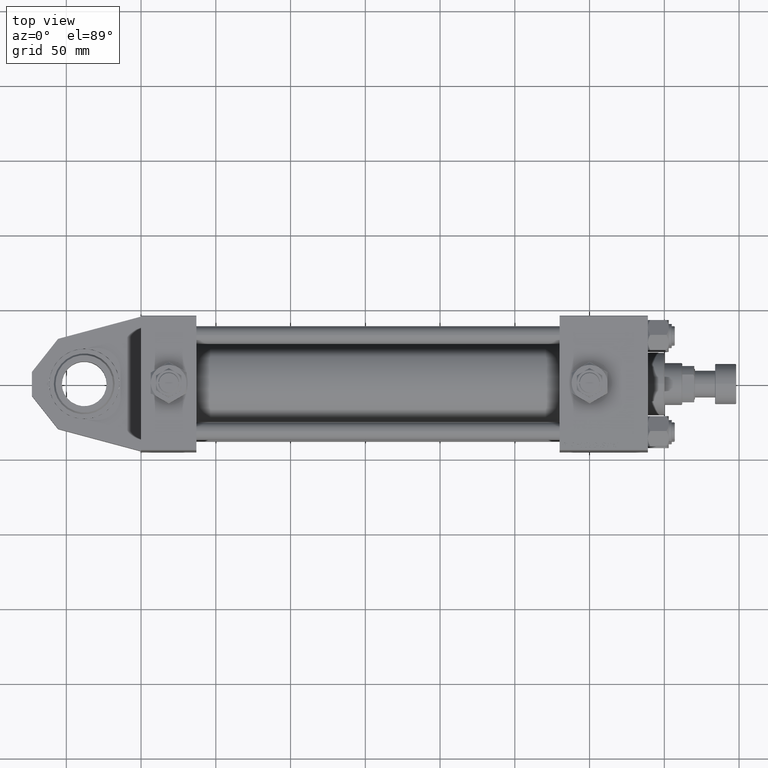
[diagram: clean part render]
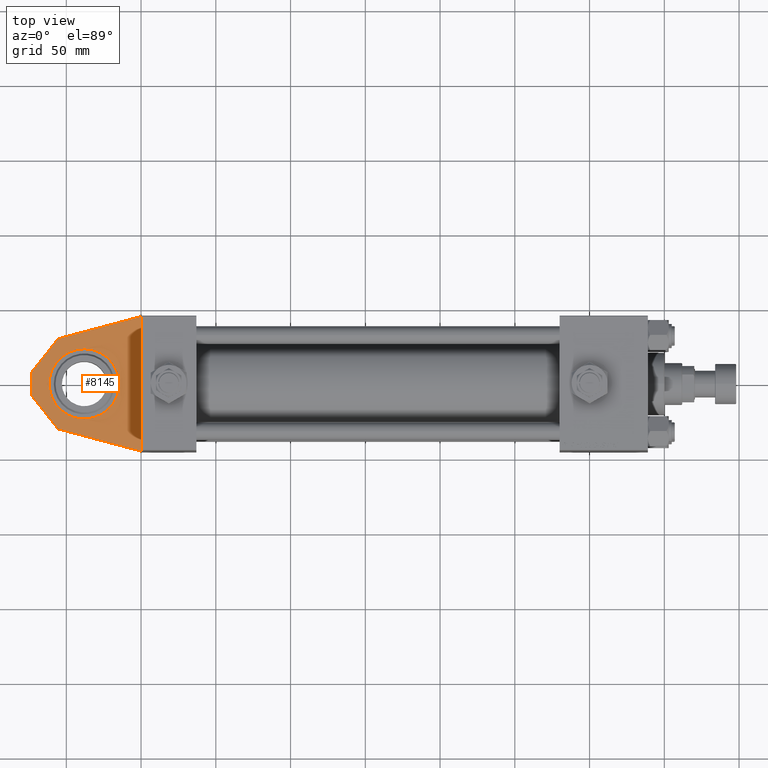
[diagram: same view with one face highlighted and labeled with its STEP entity id]
A machine part, top view. The second image highlights one B-rep face of the part: STEP entity #8145.
In plain terms, the highlighted planar face has unit normal (0, 0, 1).
Its self-contained STEP definition (entity closure, byte-faithful):
#157 = VECTOR ( 'NONE', #27143, 1000.000000000000000 ) ;
#629 = DIRECTION ( 'NONE',  ( 0.000000000000000000, 0.000000000000000000, -1.000000000000000000 ) ) ;
#923 = CARTESIAN_POINT ( 'NONE',  ( -38.00000000000000000, 9.000000000000000000, 0.000000000000000000 ) ) ;
#1283 = LINE ( 'NONE', #34290, #4159 ) ;
#2702 = VECTOR ( 'NONE', #29369, 1000.000000000000114 ) ;
#2853 = CARTESIAN_POINT ( 'NONE',  ( -73.00000000000001421, 9.000000000000000000, -7.999999999999994671 ) ) ;
#3444 = VERTEX_POINT ( 'NONE', #25847 ) ;
#4139 = EDGE_LOOP ( 'NONE', ( #50196, #6636 ) ) ;
#4159 = VECTOR ( 'NONE', #21776, 1000.000000000000227 ) ;
#6438 = EDGE_CURVE ( 'NONE', #42836, #39048, #32847, .T. ) ;
#6636 = ORIENTED_EDGE ( 'NONE', *, *, #19770, .F. ) ;
#8145 = ADVANCED_FACE ( 'NONE', ( #17275, #33772 ), #33516, .T. ) ;
#10109 = CARTESIAN_POINT ( 'NONE',  ( -73.00000000000001421, 9.000000000000000000, -7.999999999999994671 ) ) ;
#10781 = DIRECTION ( 'NONE',  ( 0.000000000000000000, 0.000000000000000000, 1.000000000000000000 ) ) ;
#11910 = VECTOR ( 'NONE', #629, 1000.000000000000000 ) ;
#12604 = DIRECTION ( 'NONE',  ( -0.6202965109737120786, -0.000000000000000000, 0.7843674129346778212 ) ) ;
#12778 = ORIENTED_EDGE ( 'NONE', *, *, #16828, .T. ) ;
#12958 = CARTESIAN_POINT ( 'NONE',  ( -55.50000000000000000, 9.000000000000000000, 30.12881982007244019 ) ) ;
#13133 = CARTESIAN_POINT ( 'NONE',  ( -73.00000000000001421, 9.000000000000000000, 8.000000000000005329 ) ) ;
#13177 = AXIS2_PLACEMENT_3D ( 'NONE', #923, #45938, #21419 ) ;
#13209 = AXIS2_PLACEMENT_3D ( 'NONE', #47275, #39001, #10781 ) ;
#13216 = LINE ( 'NONE', #12958, #26741 ) ;
#13287 = CARTESIAN_POINT ( 'NONE',  ( 0.000000000000000000, 9.000000000000000000, 0.000000000000000000 ) ) ;
#15175 = EDGE_CURVE ( 'NONE', #33938, #28005, #16606, .T. ) ;
#16606 = CIRCLE ( 'NONE', #13177, 23.50000000000000355 ) ;
#16828 = EDGE_CURVE ( 'NONE', #3444, #27654, #13216, .T. ) ;
#16847 = CARTESIAN_POINT ( 'NONE',  ( -73.00000000000001421, 9.000000000000000000, -7.999999999999994671 ) ) ;
#17275 = FACE_BOUND ( 'NONE', #4139, .T. ) ;
#19770 = EDGE_CURVE ( 'NONE', #28005, #33938, #22549, .T. ) ;
#20888 = CARTESIAN_POINT ( 'NONE',  ( 0.000000000000000000, 9.000000000000000000, 45.00000000000000000 ) ) ;
#21419 = DIRECTION ( 'NONE',  ( 0.000000000000000000, 0.000000000000000000, 1.000000000000000000 ) ) ;
#21563 = ORIENTED_EDGE ( 'NONE', *, *, #38343, .T. ) ;
#21776 = DIRECTION ( 'NONE',  ( -0.9659258262890670910, -0.000000000000000000, 0.2588190451025247918 ) ) ;
#22384 = AXIS2_PLACEMENT_3D ( 'NONE', #13287, #29520, #35610 ) ;
#22549 = CIRCLE ( 'NONE', #13209, 23.50000000000000355 ) ;
#25427 = VERTEX_POINT ( 'NONE', #30717 ) ;
#25847 = CARTESIAN_POINT ( 'NONE',  ( -55.50000000000000000, 9.000000000000000000, 30.12881982007244019 ) ) ;
#26741 = VECTOR ( 'NONE', #41446, 1000.000000000000227 ) ;
#27143 = DIRECTION ( 'NONE',  ( 0.000000000000000000, 0.000000000000000000, 1.000000000000000000 ) ) ;
#27266 = ORIENTED_EDGE ( 'NONE', *, *, #6438, .T. ) ;
#27654 = VERTEX_POINT ( 'NONE', #20888 ) ;
#27680 = CARTESIAN_POINT ( 'NONE',  ( 0.000000000000000000, 9.000000000000000000, -45.00000000000000000 ) ) ;
#28005 = VERTEX_POINT ( 'NONE', #50128 ) ;
#29369 = DIRECTION ( 'NONE',  ( 0.6202965109737124116, 0.000000000000000000, 0.7843674129346777102 ) ) ;
#29520 = DIRECTION ( 'NONE',  ( -0.000000000000000000, 1.000000000000000000, 0.000000000000000000 ) ) ;
#30717 = CARTESIAN_POINT ( 'NONE',  ( -73.00000000000001421, 9.000000000000000000, 8.000000000000005329 ) ) ;
#31580 = EDGE_CURVE ( 'NONE', #38889, #42836, #1283, .T. ) ;
#32847 = LINE ( 'NONE', #16847, #47034 ) ;
#32886 = EDGE_LOOP ( 'NONE', ( #21563, #12778, #35520, #37762, #27266, #45554 ) ) ;
#33516 = PLANE ( 'NONE',  #22384 ) ;
#33772 = FACE_OUTER_BOUND ( 'NONE', #32886, .T. ) ;
#33938 = VERTEX_POINT ( 'NONE', #36600 ) ;
#33981 = EDGE_CURVE ( 'NONE', #27654, #38889, #41124, .T. ) ;
#34290 = CARTESIAN_POINT ( 'NONE',  ( -55.50000000000000711, 9.000000000000000000, -30.12881982007243309 ) ) ;
#35520 = ORIENTED_EDGE ( 'NONE', *, *, #33981, .T. ) ;
#35610 = DIRECTION ( 'NONE',  ( 0.000000000000000000, -0.000000000000000000, 1.000000000000000000 ) ) ;
#36600 = CARTESIAN_POINT ( 'NONE',  ( -38.00000000000000000, 9.000000000000000000, 23.50000000000000355 ) ) ;
#37118 = CARTESIAN_POINT ( 'NONE',  ( 0.000000000000000000, 9.000000000000000000, 45.00000000000000000 ) ) ;
#37762 = ORIENTED_EDGE ( 'NONE', *, *, #31580, .T. ) ;
#38343 = EDGE_CURVE ( 'NONE', #25427, #3444, #49635, .T. ) ;
#38889 = VERTEX_POINT ( 'NONE', #27680 ) ;
#39001 = DIRECTION ( 'NONE',  ( 0.000000000000000000, 1.000000000000000000, 0.000000000000000000 ) ) ;
#39048 = VERTEX_POINT ( 'NONE', #2853 ) ;
#39124 = LINE ( 'NONE', #10109, #157 ) ;
#41124 = LINE ( 'NONE', #37118, #11910 ) ;
#41446 = DIRECTION ( 'NONE',  ( 0.9659258262890672020, 0.000000000000000000, 0.2588190451025247363 ) ) ;
#42836 = VERTEX_POINT ( 'NONE', #45794 ) ;
#45554 = ORIENTED_EDGE ( 'NONE', *, *, #51946, .T. ) ;
#45794 = CARTESIAN_POINT ( 'NONE',  ( -55.50000000000000711, 9.000000000000000000, -30.12881982007243309 ) ) ;
#45938 = DIRECTION ( 'NONE',  ( 0.000000000000000000, 1.000000000000000000, 0.000000000000000000 ) ) ;
#47034 = VECTOR ( 'NONE', #12604, 1000.000000000000227 ) ;
#47275 = CARTESIAN_POINT ( 'NONE',  ( -38.00000000000000000, 9.000000000000000000, 0.000000000000000000 ) ) ;
#49635 = LINE ( 'NONE', #13133, #2702 ) ;
#50128 = CARTESIAN_POINT ( 'NONE',  ( -38.00000000000000000, 9.000000000000000000, -23.50000000000000355 ) ) ;
#50196 = ORIENTED_EDGE ( 'NONE', *, *, #15175, .F. ) ;
#51946 = EDGE_CURVE ( 'NONE', #39048, #25427, #39124, .T. ) ;